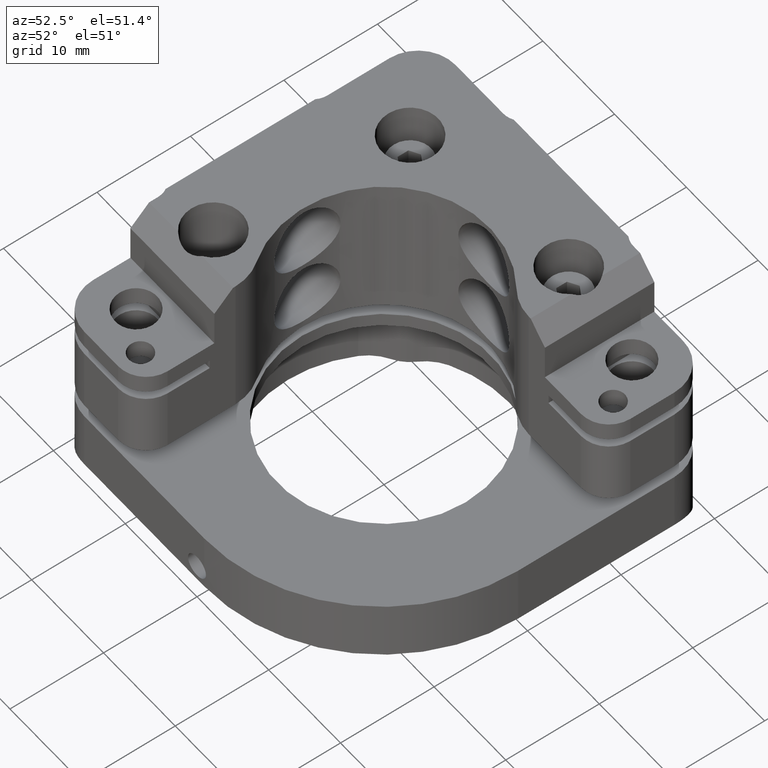
[diagram: clean part render]
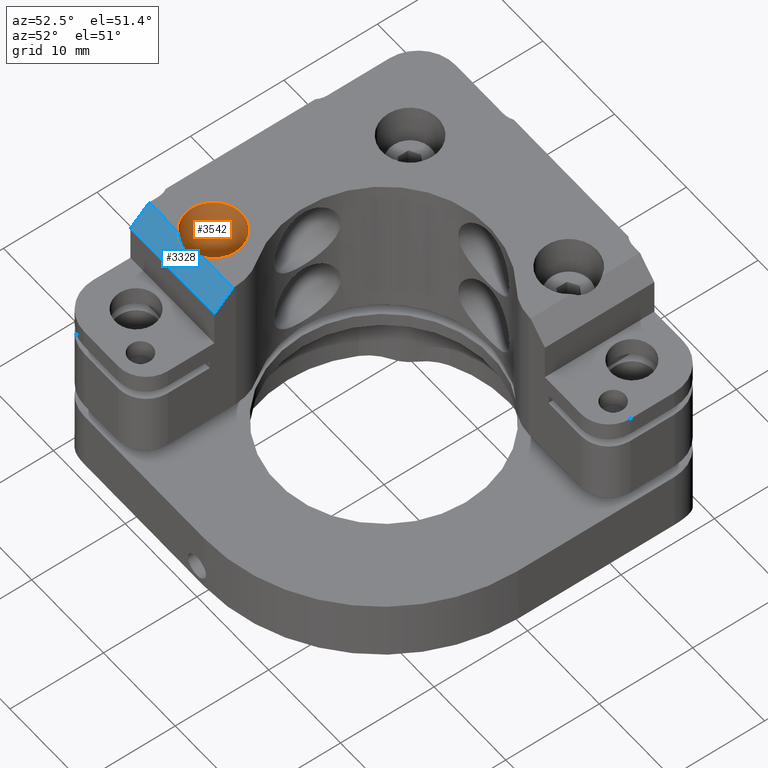
[diagram: same view with the hole feature highlighted: cylindrical wall and planar end face, labeled with their STEP entity ids]
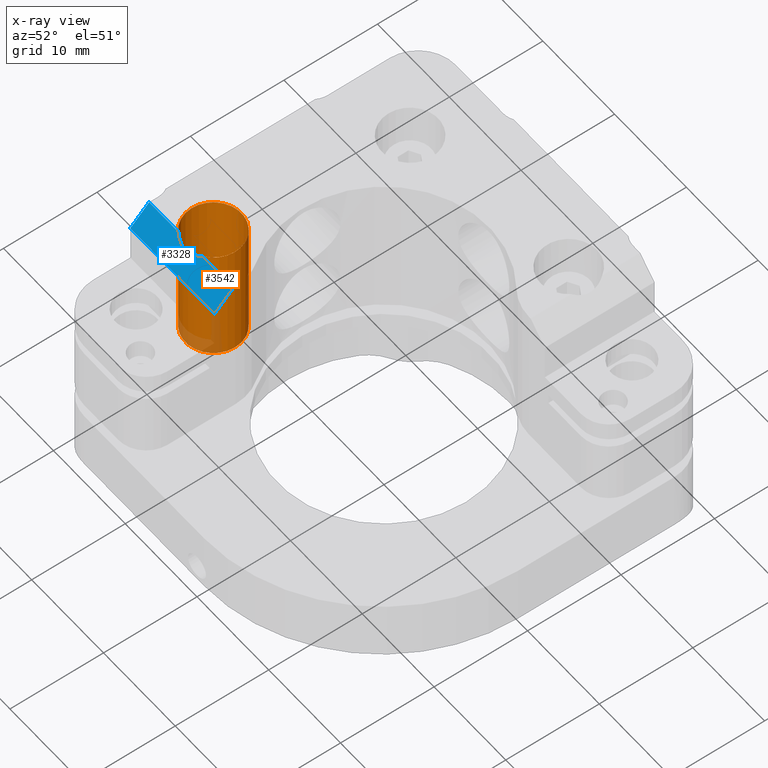
[diagram: x-ray of the same camera — body ghosted, the hole faces saturated]
A machine part, auxiliary view. The highlighted faces form one hole feature of diameter 6 mm: the cylindrical wall (entity #3542, orange) and its adjacent planar end face (entity #3328, blue) — they share a circular edge in the B-rep.
The next image is the same camera in x-ray (body ghosted, the hole faces saturated) — the bore reads through the body.
Wall:
#208 = DIRECTION ( 'NONE',  ( 1.000000000000000000, 0.000000000000000000, 0.000000000000000000 ) ) ;
#234 = FACE_OUTER_BOUND ( 'NONE', #1377, .T. ) ;
#238 = DIRECTION ( 'NONE',  ( 1.000000000000000000, 0.000000000000000000, 0.000000000000000000 ) ) ;
#261 = CARTESIAN_POINT ( 'NONE',  ( -13.99999994110110002, -7.500000058899130018, 12.50000000000000000 ) ) ;
#340 = DIRECTION ( 'NONE',  ( 1.000000000000000000, 0.000000000000000000, 0.000000000000000000 ) ) ;
#341 = CARTESIAN_POINT ( 'NONE',  ( -10.99999994110110002, -7.500000058899130018, 12.50000000000000000 ) ) ;
#350 = EDGE_LOOP ( 'NONE', ( #654, #1123 ) ) ;
#654 = ORIENTED_EDGE ( 'NONE', *, *, #1365, .F. ) ;
#748 = VERTEX_POINT ( 'NONE', #341 ) ;
#924 = CARTESIAN_POINT ( 'NONE',  ( -15.65831242507401200, -9.999999999999049649, 25.50000000000000355 ) ) ;
#1123 = ORIENTED_EDGE ( 'NONE', *, *, #3149, .T. ) ;
#1358 = VERTEX_POINT ( 'NONE', #3945 ) ;
#1365 = EDGE_CURVE ( 'NONE', #4378, #1358, #2517, .T. ) ;
#1377 = EDGE_LOOP ( 'NONE', ( #1648 ) ) ;
#1468 =( BOUNDED_CURVE ( )  B_SPLINE_CURVE ( 3, ( #924, #3171, #2442, #3469 ),
 .UNSPECIFIED., .F., .F. ) 
 B_SPLINE_CURVE_WITH_KNOTS ( ( 4, 4 ),
 ( 2.555907074614558017, 3.727278232565028215 ),
 .UNSPECIFIED. ) 
 CURVE ( )  GEOMETRIC_REPRESENTATION_ITEM ( )  RATIONAL_B_SPLINE_CURVE ( ( 1.000000000000000000, 0.8888888757999821033, 0.8888888757999821033, 1.000000000000000000 ) ) 
 REPRESENTATION_ITEM ( '' )  );
#1648 = ORIENTED_EDGE ( 'NONE', *, *, #3844, .F. ) ;
#2088 = CARTESIAN_POINT ( 'NONE',  ( -13.99999994110110002, -7.500000058899130018, 25.50000000000000355 ) ) ;
#2213 = AXIS2_PLACEMENT_3D ( 'NONE', #2088, #2847, #238 ) ;
#2442 = CARTESIAN_POINT ( 'NONE',  ( -13.37813275045425598, -10.68750008374760263, 24.81249991625160334 ) ) ;
#2477 = DIRECTION ( 'NONE',  ( 0.000000000000000000, 0.000000000000000000, 1.000000000000000000 ) ) ;
#2517 = CIRCLE ( 'NONE', #2213, 3.000000000000000888 ) ;
#2847 = DIRECTION ( 'NONE',  ( -0.000000000000000000, -0.000000000000000000, -1.000000000000000000 ) ) ;
#2912 = CARTESIAN_POINT ( 'NONE',  ( -15.65831242507401200, -9.999999999999049649, 25.50000000000000355 ) ) ;
#3149 = EDGE_CURVE ( 'NONE', #4378, #1358, #1468, .T. ) ;
#3171 = CARTESIAN_POINT ( 'NONE',  ( -14.62186713174794939, -10.68750008374760263, 24.81249991625160334 ) ) ;
#3469 = CARTESIAN_POINT ( 'NONE',  ( -12.34168745712818982, -9.999999999999049649, 25.50000000000000355 ) ) ;
#3542 = ADVANCED_FACE ( 'NONE', ( #234, #3866 ), #4662, .F. ) ;
#3844 = EDGE_CURVE ( 'NONE', #748, #748, #4505, .T. ) ;
#3866 = FACE_OUTER_BOUND ( 'NONE', #350, .T. ) ;
#3917 = CARTESIAN_POINT ( 'NONE',  ( -13.99999994110110002, -7.500000058899130018, 12.50000000000000000 ) ) ;
#3945 = CARTESIAN_POINT ( 'NONE',  ( -12.34168745712818982, -9.999999999999049649, 25.50000000000000355 ) ) ;
#4348 = DIRECTION ( 'NONE',  ( 0.000000000000000000, 0.000000000000000000, 1.000000000000000000 ) ) ;
#4378 = VERTEX_POINT ( 'NONE', #2912 ) ;
#4502 = AXIS2_PLACEMENT_3D ( 'NONE', #3917, #2477, #208 ) ;
#4505 = CIRCLE ( 'NONE', #4735, 3.000000000000000888 ) ;
#4662 = CYLINDRICAL_SURFACE ( 'NONE', #4502, 3.000000000000000888 ) ;
#4735 = AXIS2_PLACEMENT_3D ( 'NONE', #261, #4348, #340 ) ;
End face:
#61 = AXIS2_PLACEMENT_3D ( 'NONE', #2491, #589, #2150 ) ;
#139 = CARTESIAN_POINT ( 'NONE',  ( -7.999999999999861444, -11.99999999999949729, 23.50000000000000355 ) ) ;
#454 = VECTOR ( 'NONE', #952, 1000.000000000000000 ) ;
#496 = ORIENTED_EDGE ( 'NONE', *, *, #2794, .F. ) ;
#501 = DIRECTION ( 'NONE',  ( -1.000000000000000000, 0.000000000000000000, -0.000000000000000000 ) ) ;
#589 = DIRECTION ( 'NONE',  ( 0.000000000000000000, 0.7071067811864689689, -0.7071067811866260655 ) ) ;
#822 = CARTESIAN_POINT ( 'NONE',  ( -19.70000000000028706, -11.99999999999949907, 23.50000000000000000 ) ) ;
#856 = CARTESIAN_POINT ( 'NONE',  ( 15.99999999999930012, -9.999999999999051425, 25.50000000000000355 ) ) ;
#924 = CARTESIAN_POINT ( 'NONE',  ( -15.65831242507401200, -9.999999999999049649, 25.50000000000000355 ) ) ;
#952 = DIRECTION ( 'NONE',  ( 1.000000000000000000, 0.000000000000000000, -0.000000000000000000 ) ) ;
#1146 = CARTESIAN_POINT ( 'NONE',  ( -7.999999999999786837, -9.999999999999049649, 25.50000000000000355 ) ) ;
#1352 = ORIENTED_EDGE ( 'NONE', *, *, #1766, .F. ) ;
#1358 = VERTEX_POINT ( 'NONE', #3945 ) ;
#1362 = PLANE ( 'NONE',  #61 ) ;
#1468 =( BOUNDED_CURVE ( )  B_SPLINE_CURVE ( 3, ( #924, #3171, #2442, #3469 ),
 .UNSPECIFIED., .F., .F. ) 
 B_SPLINE_CURVE_WITH_KNOTS ( ( 4, 4 ),
 ( 2.555907074614558017, 3.727278232565028215 ),
 .UNSPECIFIED. ) 
 CURVE ( )  GEOMETRIC_REPRESENTATION_ITEM ( )  RATIONAL_B_SPLINE_CURVE ( ( 1.000000000000000000, 0.8888888757999821033, 0.8888888757999821033, 1.000000000000000000 ) ) 
 REPRESENTATION_ITEM ( '' )  );
#1529 = EDGE_LOOP ( 'NONE', ( #2007, #1352, #2644, #1640, #496, #4514 ) ) ;
#1640 = ORIENTED_EDGE ( 'NONE', *, *, #3149, .F. ) ;
#1766 = EDGE_CURVE ( 'NONE', #1878, #3444, #4147, .T. ) ;
#1878 = VERTEX_POINT ( 'NONE', #1946 ) ;
#1916 = DIRECTION ( 'NONE',  ( 6.869154506740740846E-14, 0.7071067811866266206, 0.7071067811864684138 ) ) ;
#1946 = CARTESIAN_POINT ( 'NONE',  ( -7.999999999999819700, -9.999999999999051425, 25.50000000000000355 ) ) ;
#2004 = CARTESIAN_POINT ( 'NONE',  ( 2.567390744445669956E-13, -11.99999999999949729, 23.50000000000000000 ) ) ;
#2007 = ORIENTED_EDGE ( 'NONE', *, *, #2698, .F. ) ;
#2116 = VECTOR ( 'NONE', #501, 1000.000000000000000 ) ;
#2150 = DIRECTION ( 'NONE',  ( 0.000000000000000000, 0.7071067811866260655, 0.7071067811864689689 ) ) ;
#2211 = CARTESIAN_POINT ( 'NONE',  ( 15.99999999999930012, -9.999999999999051425, 25.50000000000000355 ) ) ;
#2304 = LINE ( 'NONE', #822, #4292 ) ;
#2442 = CARTESIAN_POINT ( 'NONE',  ( -13.37813275045425598, -10.68750008374760263, 24.81249991625160334 ) ) ;
#2491 = CARTESIAN_POINT ( 'NONE',  ( 2.567390744445669956E-13, -9.999999999999049649, 25.50000000000000355 ) ) ;
#2495 = LINE ( 'NONE', #2211, #3126 ) ;
#2525 = CARTESIAN_POINT ( 'NONE',  ( -19.70000000000005969, -9.999999999999051425, 25.50000000000000355 ) ) ;
#2534 = EDGE_CURVE ( 'NONE', #3395, #2926, #2304, .T. ) ;
#2644 = ORIENTED_EDGE ( 'NONE', *, *, #3105, .F. ) ;
#2698 = EDGE_CURVE ( 'NONE', #3444, #3395, #4294, .T. ) ;
#2794 = EDGE_CURVE ( 'NONE', #2926, #4378, #2495, .T. ) ;
#2912 = CARTESIAN_POINT ( 'NONE',  ( -15.65831242507401200, -9.999999999999049649, 25.50000000000000355 ) ) ;
#2926 = VERTEX_POINT ( 'NONE', #2525 ) ;
#3105 = EDGE_CURVE ( 'NONE', #1358, #1878, #3540, .T. ) ;
#3126 = VECTOR ( 'NONE', #4320, 1000.000000000000000 ) ;
#3149 = EDGE_CURVE ( 'NONE', #4378, #1358, #1468, .T. ) ;
#3171 = CARTESIAN_POINT ( 'NONE',  ( -14.62186713174794939, -10.68750008374760263, 24.81249991625160334 ) ) ;
#3328 = ADVANCED_FACE ( 'NONE', ( #3620 ), #1362, .F. ) ;
#3395 = VERTEX_POINT ( 'NONE', #4183 ) ;
#3444 = VERTEX_POINT ( 'NONE', #139 ) ;
#3469 = CARTESIAN_POINT ( 'NONE',  ( -12.34168745712818982, -9.999999999999049649, 25.50000000000000355 ) ) ;
#3540 = LINE ( 'NONE', #856, #454 ) ;
#3620 = FACE_OUTER_BOUND ( 'NONE', #1529, .T. ) ;
#3718 = DIRECTION ( 'NONE',  ( -2.146610783356481593E-14, -0.7071067811866266206, -0.7071067811864684138 ) ) ;
#3945 = CARTESIAN_POINT ( 'NONE',  ( -12.34168745712818982, -9.999999999999049649, 25.50000000000000355 ) ) ;
#4147 = LINE ( 'NONE', #1146, #4593 ) ;
#4183 = CARTESIAN_POINT ( 'NONE',  ( -19.70000000000028706, -11.99999999999963407, 23.49999999999986500 ) ) ;
#4292 = VECTOR ( 'NONE', #1916, 1000.000000000000114 ) ;
#4294 = LINE ( 'NONE', #2004, #2116 ) ;
#4320 = DIRECTION ( 'NONE',  ( 1.000000000000000000, 0.000000000000000000, -0.000000000000000000 ) ) ;
#4378 = VERTEX_POINT ( 'NONE', #2912 ) ;
#4514 = ORIENTED_EDGE ( 'NONE', *, *, #2534, .F. ) ;
#4593 = VECTOR ( 'NONE', #3718, 1000.000000000000114 ) ;